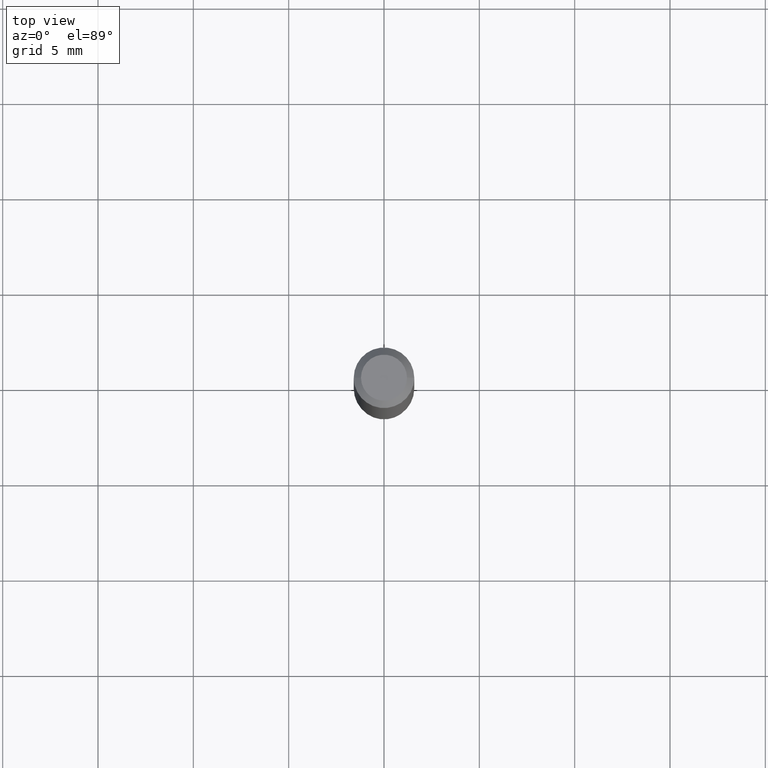
[diagram: clean part render]
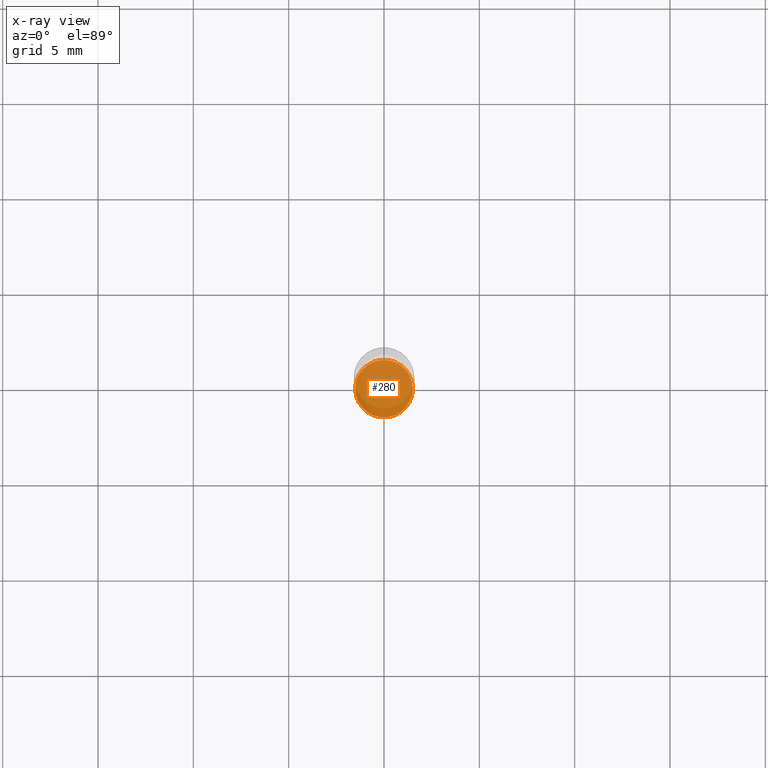
[diagram: x-ray — body ghosted, one internal face saturated and labeled with its STEP entity id]
A machine part, top view, then the same camera in x-ray: the body is ghosted and one INTERNAL B-rep face — a face not visible from any outside direction — is saturated and labeled: STEP entity #280.
In plain terms, the highlighted planar face has unit normal (-0, 0, 1).
Its self-contained STEP definition (entity closure, byte-faithful):
#12 = CARTESIAN_POINT ( 'NONE',  ( 0.05949999999999999734, -5.024241646595285275E-15, -1.320000000000000062 ) ) ;
#36 = CARTESIAN_POINT ( 'NONE',  ( 3.228018824164380442E-29, -4.608755367272952437E-15, -1.320000000000000062 ) ) ;
#81 = ORIENTED_EDGE ( 'NONE', *, *, #241, .F. ) ;
#82 = CIRCLE ( 'NONE', #230, 0.05949999999999999734 ) ;
#86 = ORIENTED_EDGE ( 'NONE', *, *, #445, .F. ) ;
#89 = CIRCLE ( 'NONE', #146, 0.05949999999999999734 ) ;
#121 = DIRECTION ( 'NONE',  ( 1.000000000000000000, -6.982962677686259611E-15, 0.000000000000000000 ) ) ;
#146 = AXIS2_PLACEMENT_3D ( 'NONE', #36, #183, #291 ) ;
#183 = DIRECTION ( 'NONE',  ( -2.445468806185136597E-29, 3.491481338843145583E-15, 1.000000000000000000 ) ) ;
#196 = CARTESIAN_POINT ( 'NONE',  ( -0.05949999999999999734, -4.183333212321582433E-15, -1.320000000000000062 ) ) ;
#221 = AXIS2_PLACEMENT_3D ( 'NONE', #227, #375, #418 ) ;
#227 = CARTESIAN_POINT ( 'NONE',  ( 3.228018824164380442E-29, -4.608755367272952437E-15, -1.320000000000000062 ) ) ;
#230 = AXIS2_PLACEMENT_3D ( 'NONE', #450, #454, #121 ) ;
#241 = EDGE_CURVE ( 'NONE', #271, #436, #89, .T. ) ;
#271 = VERTEX_POINT ( 'NONE', #196 ) ;
#280 = ADVANCED_FACE ( 'NONE', ( #413 ), #424, .F. ) ;
#291 = DIRECTION ( 'NONE',  ( 1.000000000000000000, -6.982962677686259611E-15, 0.000000000000000000 ) ) ;
#311 = EDGE_LOOP ( 'NONE', ( #86, #81 ) ) ;
#375 = DIRECTION ( 'NONE',  ( -2.438088387897960049E-29, 3.491481338843145188E-15, 1.000000000000000000 ) ) ;
#413 = FACE_OUTER_BOUND ( 'NONE', #311, .T. ) ;
#418 = DIRECTION ( 'NONE',  ( 1.000000000000000000, -6.982962677686265922E-15, 4.876176775795935793E-29 ) ) ;
#424 = PLANE ( 'NONE',  #221 ) ;
#436 = VERTEX_POINT ( 'NONE', #12 ) ;
#445 = EDGE_CURVE ( 'NONE', #436, #271, #82, .T. ) ;
#450 = CARTESIAN_POINT ( 'NONE',  ( 3.228018824164380442E-29, -4.608755367272952437E-15, -1.320000000000000062 ) ) ;
#454 = DIRECTION ( 'NONE',  ( -2.445468806185136597E-29, 3.491481338843145583E-15, 1.000000000000000000 ) ) ;